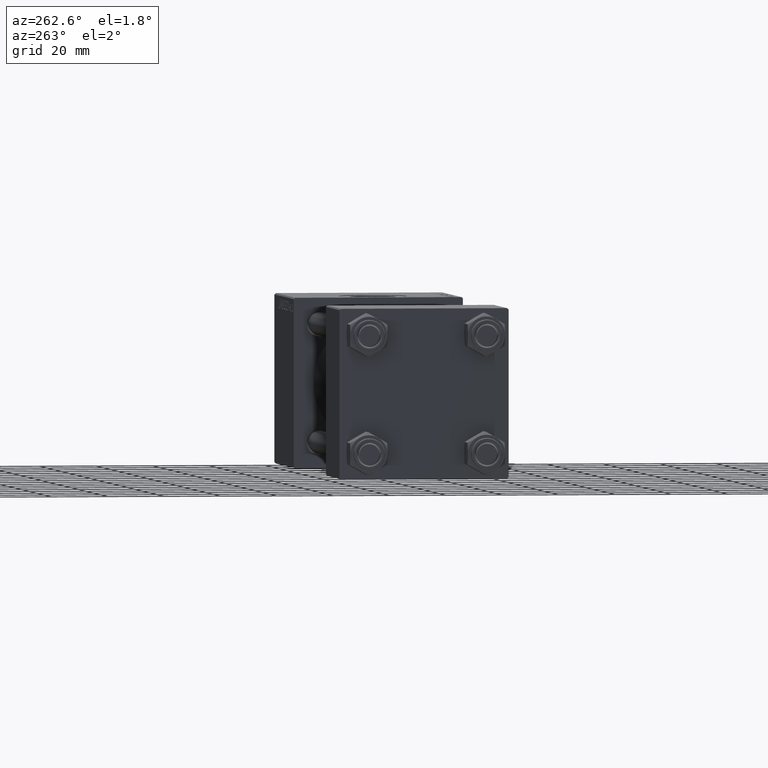
[diagram: clean part render]
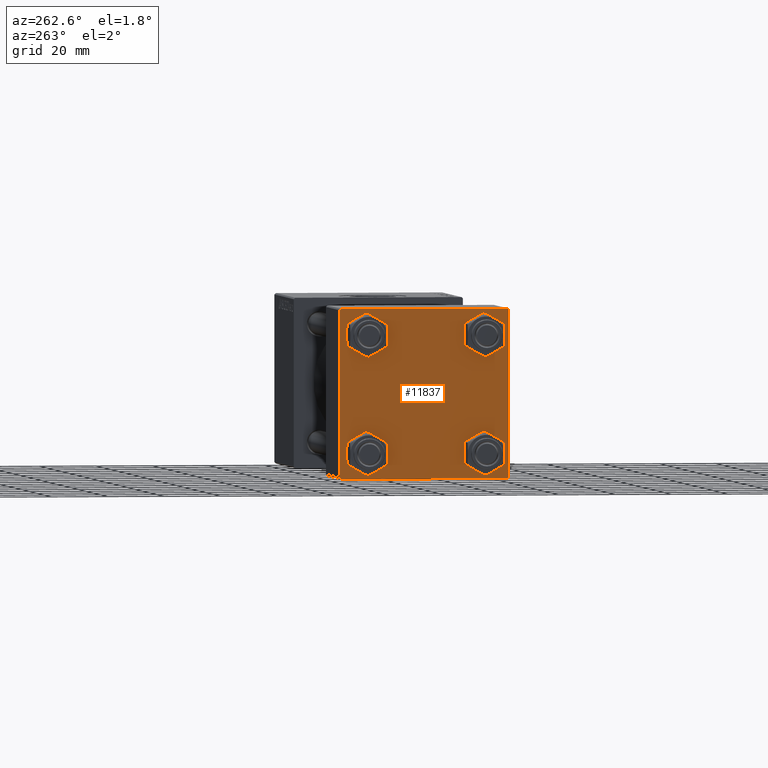
[diagram: same view with one face highlighted and labeled with its STEP entity id]
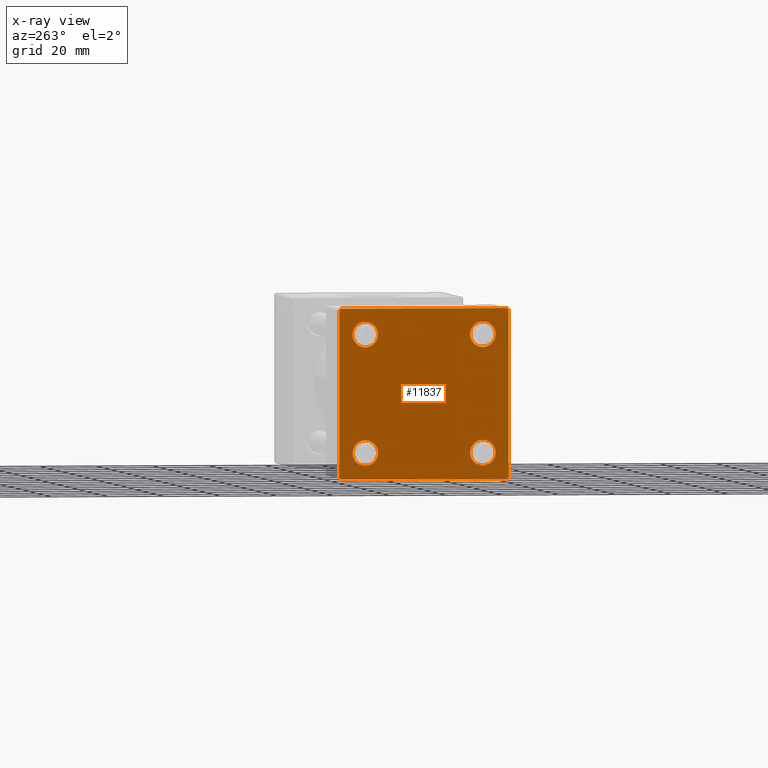
[diagram: x-ray of the same camera — body ghosted, the highlighted face saturated]
A machine part, auxiliary view. The second image highlights one B-rep face of the part: STEP entity #11837.
The next image is the same camera in x-ray: the body ghosted, the highlighted face saturated — about 0% of this face is hidden behind the body in this view.
In plain terms, the highlighted planar face has unit normal (-1, 0, 0).
Its self-contained STEP definition (entity closure, byte-faithful):
#30 = CARTESIAN_POINT ( 'NONE',  ( 0.000000000000000000, 29.99999999999999289, -29.50000000000000000 ) ) ;
#241 = AXIS2_PLACEMENT_3D ( 'NONE', #1556, #5400, #13089 ) ;
#419 = CARTESIAN_POINT ( 'NONE',  ( 0.000000000000000000, 29.99999999999999289, 30.00000000000000000 ) ) ;
#641 = AXIS2_PLACEMENT_3D ( 'NONE', #29184, #36616, #40465 ) ;
#856 = VERTEX_POINT ( 'NONE', #8492 ) ;
#973 = CARTESIAN_POINT ( 'NONE',  ( 0.000000000000000000, -30.00000000000000000, -29.50000000000001776 ) ) ;
#1556 = CARTESIAN_POINT ( 'NONE',  ( 0.000000000000000000, -20.84999999999999076, 20.85000000000000497 ) ) ;
#2390 = ORIENTED_EDGE ( 'NONE', *, *, #30118, .T. ) ;
#2434 = ORIENTED_EDGE ( 'NONE', *, *, #33987, .T. ) ;
#3028 = DIRECTION ( 'NONE',  ( 1.000000000000000000, -0.000000000000000000, 0.000000000000000000 ) ) ;
#3582 = CARTESIAN_POINT ( 'NONE',  ( 0.000000000000000000, -29.49999999999998579, 29.99999999999999289 ) ) ;
#3650 = CARTESIAN_POINT ( 'NONE',  ( 0.000000000000000000, -29.75000000000001066, -29.75000000000001066 ) ) ;
#4255 = VECTOR ( 'NONE', #31165, 1000.000000000000000 ) ;
#4434 = VERTEX_POINT ( 'NONE', #25150 ) ;
#4473 = DIRECTION ( 'NONE',  ( 1.000000000000000000, -0.000000000000000000, 0.000000000000000000 ) ) ;
#4736 = EDGE_CURVE ( 'NONE', #50201, #10253, #15116, .T. ) ;
#4991 = EDGE_CURVE ( 'NONE', #4434, #26951, #23147, .T. ) ;
#5002 = LINE ( 'NONE', #20888, #13472 ) ;
#5193 = EDGE_LOOP ( 'NONE', ( #33808, #6039 ) ) ;
#5400 = DIRECTION ( 'NONE',  ( 1.000000000000000000, -0.000000000000000000, 0.000000000000000000 ) ) ;
#5866 = CARTESIAN_POINT ( 'NONE',  ( 0.000000000000000000, -20.84999999999999076, 25.35000000000002274 ) ) ;
#5966 = DIRECTION ( 'NONE',  ( 1.000000000000000000, -0.000000000000000000, 0.000000000000000000 ) ) ;
#6039 = ORIENTED_EDGE ( 'NONE', *, *, #23358, .T. ) ;
#6131 = AXIS2_PLACEMENT_3D ( 'NONE', #26852, #3028, #18174 ) ;
#6220 = ORIENTED_EDGE ( 'NONE', *, *, #47178, .T. ) ;
#6522 = AXIS2_PLACEMENT_3D ( 'NONE', #27294, #19357, #18859 ) ;
#8058 = ORIENTED_EDGE ( 'NONE', *, *, #4736, .T. ) ;
#8492 = CARTESIAN_POINT ( 'NONE',  ( 0.000000000000000000, 29.49999999999997868, -30.00000000000000000 ) ) ;
#8722 = LINE ( 'NONE', #8976, #17465 ) ;
#8836 = DIRECTION ( 'NONE',  ( -0.000000000000000000, 0.000000000000000000, 1.000000000000000000 ) ) ;
#8976 = CARTESIAN_POINT ( 'NONE',  ( 0.000000000000000000, 29.99999999999999289, -30.00000000000000000 ) ) ;
#10171 = DIRECTION ( 'NONE',  ( 0.000000000000000000, 0.7071067811865474617, -0.7071067811865474617 ) ) ;
#10253 = VERTEX_POINT ( 'NONE', #30847 ) ;
#10263 = CARTESIAN_POINT ( 'NONE',  ( 0.000000000000000000, 20.84999999999999787, 20.85000000000000142 ) ) ;
#11295 = EDGE_CURVE ( 'NONE', #23711, #42185, #22728, .T. ) ;
#11837 = ADVANCED_FACE ( 'NONE', ( #39582, #31898, #47775, #20122, #12688 ), #35727, .T. ) ;
#12082 = ORIENTED_EDGE ( 'NONE', *, *, #48593, .T. ) ;
#12688 = FACE_OUTER_BOUND ( 'NONE', #41010, .T. ) ;
#13089 = DIRECTION ( 'NONE',  ( 0.000000000000000000, 0.000000000000000000, 1.000000000000000000 ) ) ;
#13472 = VECTOR ( 'NONE', #20632, 1000.000000000000114 ) ;
#13708 = DIRECTION ( 'NONE',  ( 0.000000000000000000, 0.000000000000000000, 1.000000000000000000 ) ) ;
#14693 = LINE ( 'NONE', #3650, #45529 ) ;
#14932 = CARTESIAN_POINT ( 'NONE',  ( 0.000000000000000000, -29.50000000000000000, -30.00000000000000711 ) ) ;
#15116 = CIRCLE ( 'NONE', #6131, 4.500000000000017764 ) ;
#15977 = CARTESIAN_POINT ( 'NONE',  ( 0.000000000000000000, -20.84999999999999076, -16.34999999999998721 ) ) ;
#16334 = EDGE_CURVE ( 'NONE', #48543, #22851, #39742, .T. ) ;
#17447 = ORIENTED_EDGE ( 'NONE', *, *, #38230, .T. ) ;
#17465 = VECTOR ( 'NONE', #24604, 1000.000000000000000 ) ;
#18174 = DIRECTION ( 'NONE',  ( 0.000000000000000000, 0.000000000000000000, 1.000000000000000000 ) ) ;
#18859 = DIRECTION ( 'NONE',  ( 0.000000000000000000, 0.000000000000000000, 1.000000000000000000 ) ) ;
#19357 = DIRECTION ( 'NONE',  ( 1.000000000000000000, -0.000000000000000000, 0.000000000000000000 ) ) ;
#19772 = CIRCLE ( 'NONE', #241, 4.500000000000017764 ) ;
#20122 = FACE_BOUND ( 'NONE', #5193, .T. ) ;
#20488 = VECTOR ( 'NONE', #28100, 999.9999999999998863 ) ;
#20497 = CARTESIAN_POINT ( 'NONE',  ( 0.000000000000000000, 20.84999999999999787, -25.35000000000001918 ) ) ;
#20632 = DIRECTION ( 'NONE',  ( -0.000000000000000000, 0.7071067811865474617, 0.7071067811865474617 ) ) ;
#20888 = CARTESIAN_POINT ( 'NONE',  ( -0.000000000000000000, -29.74999999999999645, 29.74999999999999645 ) ) ;
#21134 = CARTESIAN_POINT ( 'NONE',  ( 0.000000000000000000, 20.84999999999999787, -16.34999999999998366 ) ) ;
#21344 = CARTESIAN_POINT ( 'NONE',  ( 0.000000000000000000, -20.84999999999999076, -20.85000000000000497 ) ) ;
#21654 = VERTEX_POINT ( 'NONE', #3582 ) ;
#21665 = CIRCLE ( 'NONE', #26560, 4.500000000000017764 ) ;
#22337 = AXIS2_PLACEMENT_3D ( 'NONE', #10263, #25882, #36639 ) ;
#22402 = DIRECTION ( 'NONE',  ( 1.000000000000000000, -0.000000000000000000, 0.000000000000000000 ) ) ;
#22728 = CIRCLE ( 'NONE', #641, 4.500000000000017764 ) ;
#22759 = CARTESIAN_POINT ( 'NONE',  ( 0.000000000000000000, 29.99999999999999289, 29.50000000000000000 ) ) ;
#22787 = ORIENTED_EDGE ( 'NONE', *, *, #16334, .F. ) ;
#22851 = VERTEX_POINT ( 'NONE', #973 ) ;
#23147 = LINE ( 'NONE', #46965, #48652 ) ;
#23358 = EDGE_CURVE ( 'NONE', #42185, #23711, #41854, .T. ) ;
#23378 = EDGE_CURVE ( 'NONE', #45651, #30179, #19772, .T. ) ;
#23711 = VERTEX_POINT ( 'NONE', #49384 ) ;
#23825 = EDGE_CURVE ( 'NONE', #4434, #21654, #35503, .T. ) ;
#24604 = DIRECTION ( 'NONE',  ( 0.000000000000000000, -1.000000000000000000, -1.156482317317871725E-16 ) ) ;
#25042 = VERTEX_POINT ( 'NONE', #14932 ) ;
#25150 = CARTESIAN_POINT ( 'NONE',  ( 0.000000000000000000, 29.49999999999999289, 30.00000000000000000 ) ) ;
#25882 = DIRECTION ( 'NONE',  ( 1.000000000000000000, -0.000000000000000000, 0.000000000000000000 ) ) ;
#26560 = AXIS2_PLACEMENT_3D ( 'NONE', #41865, #22402, #13708 ) ;
#26717 = DIRECTION ( 'NONE',  ( 0.000000000000000000, -0.7071067811865474617, 0.7071067811865474617 ) ) ;
#26852 = CARTESIAN_POINT ( 'NONE',  ( 0.000000000000000000, -20.84999999999999076, -20.85000000000000497 ) ) ;
#26951 = VERTEX_POINT ( 'NONE', #22759 ) ;
#27294 = CARTESIAN_POINT ( 'NONE',  ( 0.000000000000000000, -20.84999999999999076, 20.85000000000000497 ) ) ;
#27574 = EDGE_CURVE ( 'NONE', #856, #25042, #8722, .T. ) ;
#27655 = EDGE_LOOP ( 'NONE', ( #45351, #2434 ) ) ;
#28100 = DIRECTION ( 'NONE',  ( -0.000000000000000000, -0.7071067811865574537, -0.7071067811865376918 ) ) ;
#28301 = CARTESIAN_POINT ( 'NONE',  ( 0.000000000000000000, 0.000000000000000000, 0.000000000000000000 ) ) ;
#29184 = CARTESIAN_POINT ( 'NONE',  ( 0.000000000000000000, 20.84999999999999787, 20.85000000000000142 ) ) ;
#29585 = VERTEX_POINT ( 'NONE', #30 ) ;
#30118 = EDGE_CURVE ( 'NONE', #48543, #21654, #5002, .T. ) ;
#30179 = VERTEX_POINT ( 'NONE', #49305 ) ;
#30234 = EDGE_CURVE ( 'NONE', #33257, #35380, #21665, .T. ) ;
#30459 = ORIENTED_EDGE ( 'NONE', *, *, #34265, .T. ) ;
#30847 = CARTESIAN_POINT ( 'NONE',  ( 0.000000000000000000, -20.84999999999999076, -25.35000000000002274 ) ) ;
#31165 = DIRECTION ( 'NONE',  ( 0.000000000000000000, -1.000000000000000000, -1.156482317317871725E-16 ) ) ;
#31898 = FACE_BOUND ( 'NONE', #45835, .T. ) ;
#32525 = CIRCLE ( 'NONE', #41523, 4.500000000000017764 ) ;
#32630 = ORIENTED_EDGE ( 'NONE', *, *, #35478, .T. ) ;
#32693 = CIRCLE ( 'NONE', #6522, 4.500000000000017764 ) ;
#33257 = VERTEX_POINT ( 'NONE', #21134 ) ;
#33283 = CARTESIAN_POINT ( 'NONE',  ( 0.000000000000000000, 29.99999999999999289, 30.00000000000000000 ) ) ;
#33413 = AXIS2_PLACEMENT_3D ( 'NONE', #28301, #43929, #8836 ) ;
#33469 = CARTESIAN_POINT ( 'NONE',  ( 0.000000000000000000, 20.84999999999999787, 16.34999999999998366 ) ) ;
#33530 = CARTESIAN_POINT ( 'NONE',  ( 0.000000000000000000, -30.00000000000000000, 29.49999999999999289 ) ) ;
#33572 = ORIENTED_EDGE ( 'NONE', *, *, #23378, .T. ) ;
#33808 = ORIENTED_EDGE ( 'NONE', *, *, #11295, .T. ) ;
#33987 = EDGE_CURVE ( 'NONE', #35380, #33257, #36463, .T. ) ;
#34265 = EDGE_CURVE ( 'NONE', #25042, #22851, #14693, .T. ) ;
#34812 = DIRECTION ( 'NONE',  ( 0.000000000000000000, 0.000000000000000000, 1.000000000000000000 ) ) ;
#35202 = DIRECTION ( 'NONE',  ( 0.000000000000000000, 0.000000000000000000, 1.000000000000000000 ) ) ;
#35380 = VERTEX_POINT ( 'NONE', #20497 ) ;
#35459 = CARTESIAN_POINT ( 'NONE',  ( 0.000000000000000000, 20.84999999999999787, -20.85000000000000142 ) ) ;
#35478 = EDGE_CURVE ( 'NONE', #26951, #29585, #37119, .T. ) ;
#35503 = LINE ( 'NONE', #419, #4255 ) ;
#35727 = PLANE ( 'NONE',  #33413 ) ;
#36463 = CIRCLE ( 'NONE', #43010, 4.500000000000017764 ) ;
#36587 = DIRECTION ( 'NONE',  ( 0.000000000000000000, 0.000000000000000000, -1.000000000000000000 ) ) ;
#36616 = DIRECTION ( 'NONE',  ( 1.000000000000000000, -0.000000000000000000, 0.000000000000000000 ) ) ;
#36639 = DIRECTION ( 'NONE',  ( 0.000000000000000000, 0.000000000000000000, 1.000000000000000000 ) ) ;
#37119 = LINE ( 'NONE', #33283, #40762 ) ;
#37446 = ORIENTED_EDGE ( 'NONE', *, *, #27574, .T. ) ;
#38230 = EDGE_CURVE ( 'NONE', #10253, #50201, #32525, .T. ) ;
#39582 = FACE_BOUND ( 'NONE', #47423, .T. ) ;
#39742 = LINE ( 'NONE', #44527, #44990 ) ;
#40465 = DIRECTION ( 'NONE',  ( 0.000000000000000000, 0.000000000000000000, 1.000000000000000000 ) ) ;
#40762 = VECTOR ( 'NONE', #45061, 1000.000000000000000 ) ;
#41010 = EDGE_LOOP ( 'NONE', ( #32630, #12082, #37446, #30459, #22787, #2390, #50507, #43582 ) ) ;
#41523 = AXIS2_PLACEMENT_3D ( 'NONE', #21344, #5966, #34812 ) ;
#41854 = CIRCLE ( 'NONE', #22337, 4.500000000000017764 ) ;
#41865 = CARTESIAN_POINT ( 'NONE',  ( 0.000000000000000000, 20.84999999999999787, -20.85000000000000142 ) ) ;
#42185 = VERTEX_POINT ( 'NONE', #33469 ) ;
#43010 = AXIS2_PLACEMENT_3D ( 'NONE', #35459, #4473, #35202 ) ;
#43475 = LINE ( 'NONE', #47069, #20488 ) ;
#43582 = ORIENTED_EDGE ( 'NONE', *, *, #4991, .T. ) ;
#43929 = DIRECTION ( 'NONE',  ( -1.000000000000000000, 0.000000000000000000, -0.000000000000000000 ) ) ;
#44527 = CARTESIAN_POINT ( 'NONE',  ( 0.000000000000000000, -30.00000000000000000, 29.99999999999999289 ) ) ;
#44990 = VECTOR ( 'NONE', #36587, 1000.000000000000000 ) ;
#45061 = DIRECTION ( 'NONE',  ( 0.000000000000000000, 0.000000000000000000, -1.000000000000000000 ) ) ;
#45351 = ORIENTED_EDGE ( 'NONE', *, *, #30234, .T. ) ;
#45529 = VECTOR ( 'NONE', #26717, 1000.000000000000114 ) ;
#45651 = VERTEX_POINT ( 'NONE', #5866 ) ;
#45835 = EDGE_LOOP ( 'NONE', ( #8058, #17447 ) ) ;
#46965 = CARTESIAN_POINT ( 'NONE',  ( 0.000000000000000000, 29.74999999999999645, 29.74999999999999645 ) ) ;
#47069 = CARTESIAN_POINT ( 'NONE',  ( 0.000000000000000000, 29.74999999999957723, -29.75000000000040501 ) ) ;
#47178 = EDGE_CURVE ( 'NONE', #30179, #45651, #32693, .T. ) ;
#47423 = EDGE_LOOP ( 'NONE', ( #33572, #6220 ) ) ;
#47775 = FACE_BOUND ( 'NONE', #27655, .T. ) ;
#48543 = VERTEX_POINT ( 'NONE', #33530 ) ;
#48593 = EDGE_CURVE ( 'NONE', #29585, #856, #43475, .T. ) ;
#48652 = VECTOR ( 'NONE', #10171, 1000.000000000000114 ) ;
#49305 = CARTESIAN_POINT ( 'NONE',  ( 0.000000000000000000, -20.84999999999999076, 16.34999999999998721 ) ) ;
#49384 = CARTESIAN_POINT ( 'NONE',  ( 0.000000000000000000, 20.84999999999999787, 25.35000000000001918 ) ) ;
#50201 = VERTEX_POINT ( 'NONE', #15977 ) ;
#50507 = ORIENTED_EDGE ( 'NONE', *, *, #23825, .F. ) ;